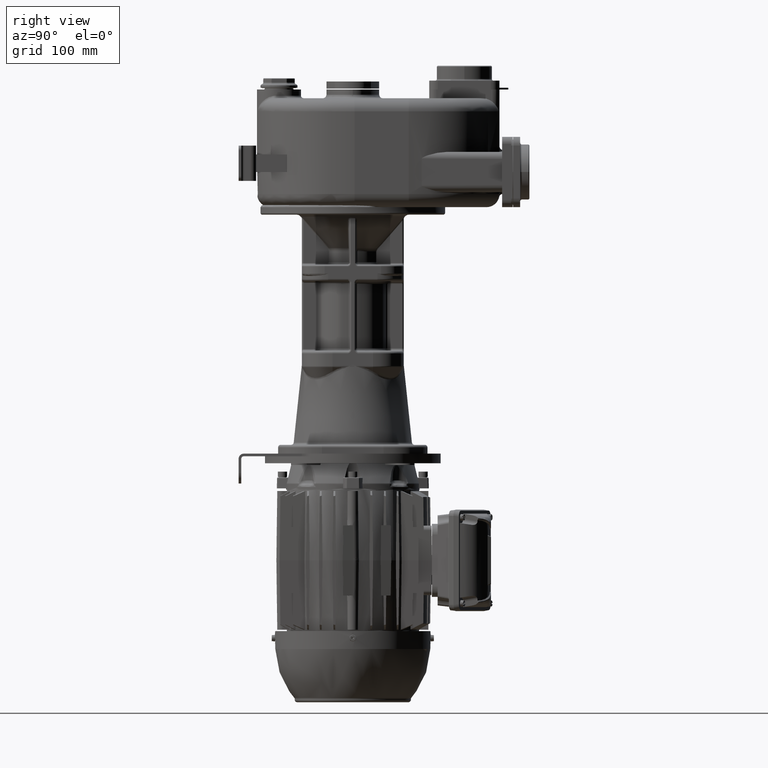
[diagram: clean part render]
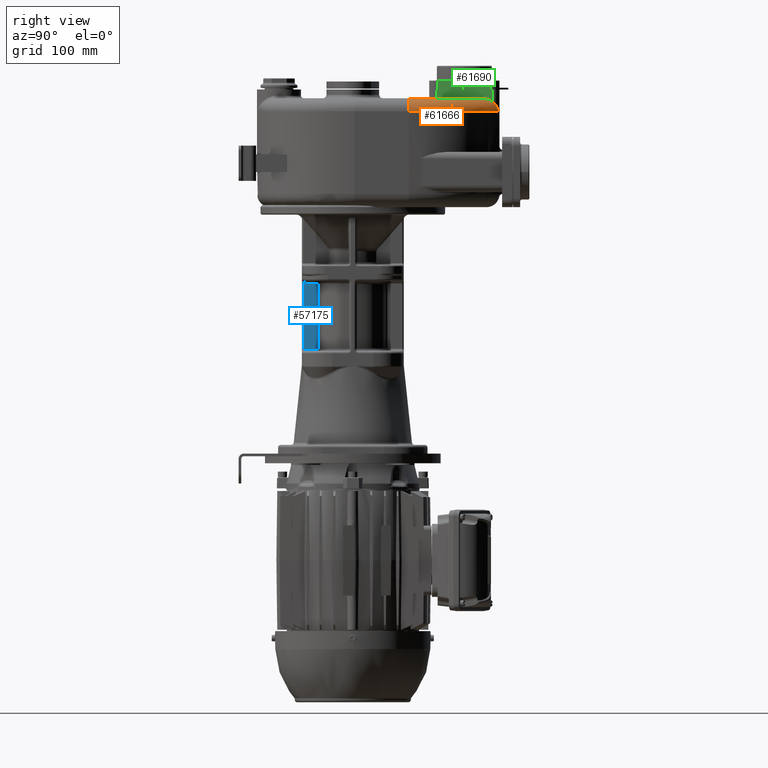
[diagram: same view with three faces highlighted in distinct colors, each labeled with its STEP entity id]
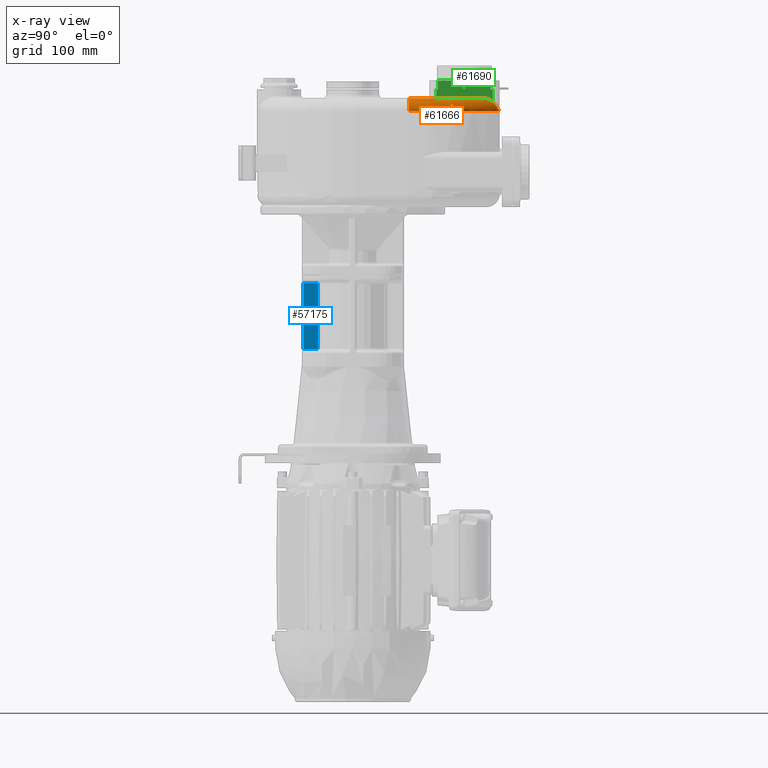
[diagram: x-ray of the same camera — body ghosted, the three highlighted faces saturated]
A machine part, right view with three faces highlighted in distinct colors.
The next image is the same camera in x-ray (body ghosted, the three faces saturated) — at least one of them is partly hidden behind the body in this view.
Their STEP definitions:

[orange] entity #61666 — the highlighted toroidal blend (fillet) surface has major radius 96 mm and minor (blend) radius 15 mm.
#12663=CARTESIAN_POINT('',(0.E0,1.736689976975E2,7.4E1));
#12664=DIRECTION('',(0.E0,0.E0,1.E0));
#12665=DIRECTION('',(1.E0,0.E0,0.E0));
#12666=AXIS2_PLACEMENT_3D('',#12663,#12664,#12665);
#13341=CARTESIAN_POINT('',(0.E0,1.736689976975E2,5.9E1));
#13342=DIRECTION('',(0.E0,0.E0,1.E0));
#13343=DIRECTION('',(1.E0,0.E0,0.E0));
#13344=AXIS2_PLACEMENT_3D('',#13341,#13342,#13343);
#13381=CARTESIAN_POINT('',(9.6E1,1.736689976975E2,5.9E1));
#13382=DIRECTION('',(0.E0,1.E0,0.E0));
#13383=DIRECTION('',(0.E0,0.E0,1.E0));
#13384=AXIS2_PLACEMENT_3D('',#13381,#13382,#13383);
#13386=CARTESIAN_POINT('',(4.7E1,2.573768228992E2,7.4E1));
#13387=CARTESIAN_POINT('',(4.7E1,2.576020841172E2,7.4E1));
#13388=CARTESIAN_POINT('',(4.7E1,2.580511507349E2,7.399229348160E1));
#13389=CARTESIAN_POINT('',(4.7E1,2.587211423584E2,7.395779192768E1));
#13390=CARTESIAN_POINT('',(4.7E1,2.593852482694E2,7.390066815002E1));
#13391=CARTESIAN_POINT('',(4.7E1,2.600433627516E2,7.382117493754E1));
#13392=CARTESIAN_POINT('',(4.7E1,2.606940159417E2,7.371969160582E1));
#13393=CARTESIAN_POINT('',(4.7E1,2.613358163383E2,7.359673452289E1));
#13394=CARTESIAN_POINT('',(4.7E1,2.619686264832E2,7.345259981904E1));
#13395=CARTESIAN_POINT('',(4.7E1,2.625907623841E2,7.328795824950E1));
#13396=CARTESIAN_POINT('',(4.7E1,2.632018763834E2,7.310323769657E1));
#13397=CARTESIAN_POINT('',(4.7E1,2.638012376095E2,7.289894857617E1));
#13398=CARTESIAN_POINT('',(4.7E1,2.643875618754E2,7.267588768255E1));
#13399=CARTESIAN_POINT('',(4.7E1,2.649609632373E2,7.243435346503E1));
#13400=CARTESIAN_POINT('',(4.7E1,2.655201532063E2,7.217522917677E1));
#13401=CARTESIAN_POINT('',(4.7E1,2.660649519596E2,7.189898353999E1));
#13402=CARTESIAN_POINT('',(4.7E1,2.665948407258E2,7.160621854533E1));
#13403=CARTESIAN_POINT('',(4.7E1,2.671089253753E2,7.129783018173E1));
#13404=CARTESIAN_POINT('',(4.7E1,2.676074032988E2,7.097407269753E1));
#13405=CARTESIAN_POINT('',(4.7E1,2.680892357156E2,7.063600853973E1));
#13406=CARTESIAN_POINT('',(4.7E1,2.685546866574E2,7.028384310627E1));
#13407=CARTESIAN_POINT('',(4.7E1,2.688534246486E2,7.004041331155E1));
#13408=CARTESIAN_POINT('',(4.7E1,2.69E2,6.991652437851E1));
#13410=CARTESIAN_POINT('',(4.7E1,2.69E2,6.991652437851E1));
#13411=CARTESIAN_POINT('',(4.7E1,2.691195070842E2,6.981551418132E1));
#13412=CARTESIAN_POINT('',(4.699464446571E1,2.693602820859E2,6.960820275807E1));
#13413=CARTESIAN_POINT('',(4.696984056815E1,2.697259407527E2,6.928110850992E1));
#13414=CARTESIAN_POINT('',(4.692766502414E1,2.700948741172E2,6.893804466269E1));
#13415=CARTESIAN_POINT('',(4.686743596046E1,2.704667559199E2,6.857831903417E1));
#13416=CARTESIAN_POINT('',(4.678863864729E1,2.708401996847E2,6.820222725714E1));
#13417=CARTESIAN_POINT('',(4.669063577583E1,2.712146616847E2,6.780922380953E1));
#13418=CARTESIAN_POINT('',(4.657298624856E1,2.715887841547E2,6.739956558133E1));
#13419=CARTESIAN_POINT('',(4.643525122413E1,2.719614777855E2,6.697325013761E1));
#13420=CARTESIAN_POINT('',(4.627704524287E1,2.723315500538E2,6.653036567936E1));
#13421=CARTESIAN_POINT('',(4.609826498293E1,2.726973730970E2,6.607156774836E1));
#13422=CARTESIAN_POINT('',(4.589860561350E1,2.730578858875E2,6.559682931060E1));
#13423=CARTESIAN_POINT('',(4.567827729936E1,2.734112410515E2,6.510719426335E1));
#13424=CARTESIAN_POINT('',(4.543715121870E1,2.737563322395E2,6.460275824237E1));
#13425=CARTESIAN_POINT('',(4.517580739174E1,2.740911771549E2,6.408495520394E1));
#13426=CARTESIAN_POINT('',(4.489444608728E1,2.744145383640E2,6.355423564050E1));
#13427=CARTESIAN_POINT('',(4.459383101101E1,2.747246544355E2,6.301198719019E1));
#13428=CARTESIAN_POINT('',(4.427460867894E1,2.750201316807E2,6.245917754969E1));
#13429=CARTESIAN_POINT('',(4.393765704004E1,2.752994997816E2,6.189704925977E1));
#13430=CARTESIAN_POINT('',(4.358425123373E1,2.755612050271E2,6.132731737671E1));
#13431=CARTESIAN_POINT('',(4.321528910514E1,2.758041564417E2,6.075094711705E1));
#13432=CARTESIAN_POINT('',(4.283257270117E1,2.760268712530E2,6.017017331297E1));
#13433=CARTESIAN_POINT('',(4.243709117565E1,2.762285629806E2,5.958585060662E1));
#13434=CARTESIAN_POINT('',(4.216627222510E1,2.763482431350E2,5.919545374962E1));
#13435=CARTESIAN_POINT('',(4.202912621359E1,2.764043496934E2,5.9E1));
#38337=CARTESIAN_POINT('',(1.11E2,1.736689976975E2,5.9E1));
#38338=CARTESIAN_POINT('',(4.202912621359E1,2.764043496934E2,5.9E1));
#38339=VERTEX_POINT('',#38337);
#38340=VERTEX_POINT('',#38338);
#38341=CARTESIAN_POINT('',(9.6E1,1.736689976975E2,7.4E1));
#38342=CARTESIAN_POINT('',(4.7E1,2.573768228992E2,7.4E1));
#38343=VERTEX_POINT('',#38341);
#38344=VERTEX_POINT('',#38342);
#38362=VERTEX_POINT('',#13408);
#61652=CARTESIAN_POINT('',(0.E0,1.736689976975E2,5.9E1));
#61653=DIRECTION('',(0.E0,0.E0,-1.E0));
#61654=DIRECTION('',(9.999722327207E-1,-7.452099538963E-3,0.E0));
#61655=AXIS2_PLACEMENT_3D('',#61652,#61653,#61654);
#61656=TOROIDAL_SURFACE('',#61655,9.6E1,1.5E1);
#61657=ORIENTED_EDGE('',*,*,#61600,.F.);
#61658=ORIENTED_EDGE('',*,*,#61644,.F.);
#61659=ORIENTED_EDGE('',*,*,#61109,.T.);
#61661=ORIENTED_EDGE('',*,*,#61660,.T.);
#61663=ORIENTED_EDGE('',*,*,#61662,.T.);
#61664=EDGE_LOOP('',(#61657,#61658,#61659,#61661,#61663));
#61665=FACE_OUTER_BOUND('',#61664,.F.);
#61666=ADVANCED_FACE('',(#61665),#61656,.T.);
#12667=CIRCLE('',#12666,9.6E1);
#13345=CIRCLE('',#13344,1.11E2);
#13385=CIRCLE('',#13384,1.5E1);
#13409=B_SPLINE_CURVE_WITH_KNOTS('',3,(#13386,#13387,#13388,#13389,#13390,
#13391,#13392,#13393,#13394,#13395,#13396,#13397,#13398,#13399,#13400,#13401,
#13402,#13403,#13404,#13405,#13406,#13407,#13408),.UNSPECIFIED.,.F.,.F.,(4,1,1,
1,1,1,1,1,1,1,1,1,1,1,1,1,1,1,1,1,4),(0.E0,5.E-2,1.E-1,1.5E-1,2.E-1,2.5E-1,
3.E-1,3.5E-1,4.E-1,4.5E-1,5.E-1,5.5E-1,6.E-1,6.5E-1,7.E-1,7.5E-1,8.E-1,8.5E-1,
9.E-1,9.5E-1,1.E0),.UNSPECIFIED.);
#13436=B_SPLINE_CURVE_WITH_KNOTS('',3,(#13410,#13411,#13412,#13413,#13414,
#13415,#13416,#13417,#13418,#13419,#13420,#13421,#13422,#13423,#13424,#13425,
#13426,#13427,#13428,#13429,#13430,#13431,#13432,#13433,#13434,#13435),
.UNSPECIFIED.,.F.,.F.,(4,1,1,1,1,1,1,1,1,1,1,1,1,1,1,1,1,1,1,1,1,1,1,4),(0.E0,
4.347826086957E-2,8.695652173913E-2,1.304347826087E-1,1.739130434783E-1,
2.173913043478E-1,2.608695652174E-1,3.043478260870E-1,3.478260869565E-1,
3.913043478261E-1,4.347826086957E-1,4.782608695652E-1,5.217391304348E-1,
5.652173913043E-1,6.086956521739E-1,6.521739130435E-1,6.956521739130E-1,
7.391304347826E-1,7.826086956522E-1,8.260869565217E-1,8.695652173913E-1,
9.130434782609E-1,9.565217391304E-1,1.E0),.UNSPECIFIED.);
#61109=EDGE_CURVE('',#38343,#38344,#12667,.T.);
#61600=EDGE_CURVE('',#38339,#38340,#13345,.T.);
#61644=EDGE_CURVE('',#38343,#38339,#13385,.T.);
#61660=EDGE_CURVE('',#38344,#38362,#13409,.T.);
#61662=EDGE_CURVE('',#38362,#38340,#13436,.T.);

[blue] entity #57175 — the highlighted planar face has unit normal (-1, 0, 0).
#10367=CARTESIAN_POINT('',(3.5E0,5.5E1,-1.315E2));
#10368=DIRECTION('',(-1.E0,0.E0,0.E0));
#10369=DIRECTION('',(0.E0,0.E0,-1.E0));
#10370=AXIS2_PLACEMENT_3D('',#10367,#10368,#10369);
#10372=DIRECTION('',(0.E0,-1.E0,0.E0));
#10373=VECTOR('',#10372,1.437057716383E1);
#10374=CARTESIAN_POINT('',(3.5E0,6.937057716383E1,-1.365E2));
#10375=LINE('',#10374,#10373);
#10376=CARTESIAN_POINT('',(3.5E0,7.037992932868E1,-1.375E2));
#10377=CARTESIAN_POINT('',(3.5E0,7.037992923916E1,-1.374773699774E2));
#10378=CARTESIAN_POINT('',(3.5E0,7.037838316905E1,-1.374322092444E2));
#10379=CARTESIAN_POINT('',(3.5E0,7.037141402641E1,-1.373645837076E2));
#10380=CARTESIAN_POINT('',(3.5E0,7.035983086058E1,-1.372976208540E2));
#10381=CARTESIAN_POINT('',(3.5E0,7.034367710807E1,-1.372315457832E2));
#10382=CARTESIAN_POINT('',(3.5E0,7.032302406514E1,-1.371666899610E2));
#10383=CARTESIAN_POINT('',(3.5E0,7.029795682384E1,-1.371033366044E2));
#10384=CARTESIAN_POINT('',(3.5E0,7.026858279292E1,-1.370417807491E2));
#10385=CARTESIAN_POINT('',(3.5E0,7.023502737557E1,-1.369823052994E2));
#10386=CARTESIAN_POINT('',(3.5E0,7.019743581119E1,-1.369251879528E2));
#10387=CARTESIAN_POINT('',(3.5E0,7.015597216226E1,-1.368706970688E2));
#10388=CARTESIAN_POINT('',(3.5E0,7.011081942369E1,-1.368190913454E2));
#10389=CARTESIAN_POINT('',(3.5E0,7.006217900095E1,-1.367706180506E2));
#10390=CARTESIAN_POINT('',(3.5E0,7.001026993801E1,-1.367255114470E2));
#10391=CARTESIAN_POINT('',(3.5E0,6.995532861523E1,-1.366839917281E2));
#10392=CARTESIAN_POINT('',(3.5E0,6.989760781639E1,-1.366462633752E2));
#10393=CARTESIAN_POINT('',(3.5E0,6.983737530666E1,-1.366125135720E2));
#10394=CARTESIAN_POINT('',(3.5E0,6.977491358163E1,-1.365829112119E2));
#10395=CARTESIAN_POINT('',(3.5E0,6.971051594695E1,-1.365576048858E2));
#10396=CARTESIAN_POINT('',(3.5E0,6.964449230972E1,-1.365367234217E2));
#10397=CARTESIAN_POINT('',(3.5E0,6.957714683371E1,-1.365203711209E2));
#10398=CARTESIAN_POINT('',(3.5E0,6.950883212143E1,-1.365086343248E2));
#10399=CARTESIAN_POINT('',(3.5E0,6.943980372305E1,-1.365015686296E2));
#10400=CARTESIAN_POINT('',(3.5E0,6.939368968384E1,-1.365000000893E2));
#10401=CARTESIAN_POINT('',(3.5E0,6.937057716383E1,-1.365E2));
#10403=DIRECTION('',(0.E0,0.E0,1.E0));
#10404=VECTOR('',#10403,7.3E1);
#10405=CARTESIAN_POINT('',(3.5E0,7.037992932868E1,-2.105E2));
#10406=LINE('',#10405,#10404);
#10407=CARTESIAN_POINT('',(3.5E0,6.937057716383E1,-2.115E2));
#10408=CARTESIAN_POINT('',(3.5E0,6.939368964652E1,-2.114999999119E2));
#10409=CARTESIAN_POINT('',(3.5E0,6.943980361795E1,-2.114984313721E2));
#10410=CARTESIAN_POINT('',(3.5E0,6.950883180983E1,-2.114913657172E2));
#10411=CARTESIAN_POINT('',(3.5E0,6.957714658714E1,-2.114796289318E2));
#10412=CARTESIAN_POINT('',(3.5E0,6.964449205123E1,-2.114632766503E2));
#10413=CARTESIAN_POINT('',(3.5E0,6.971051569505E1,-2.114423952040E2));
#10414=CARTESIAN_POINT('',(3.5E0,6.977491333651E1,-2.114170888945E2));
#10415=CARTESIAN_POINT('',(3.5E0,6.983737506784E1,-2.113874865516E2));
#10416=CARTESIAN_POINT('',(3.5E0,6.989760758625E1,-2.113537367645E2));
#10417=CARTESIAN_POINT('',(3.5E0,6.995532839471E1,-2.113160084271E2));
#10418=CARTESIAN_POINT('',(3.5E0,7.001026972716E1,-2.112744887239E2));
#10419=CARTESIAN_POINT('',(3.5E0,7.006217880310E1,-2.112293821337E2));
#10420=CARTESIAN_POINT('',(3.5E0,7.011081924404E1,-2.111809088462E2));
#10421=CARTESIAN_POINT('',(3.5E0,7.015597199621E1,-2.111293031341E2));
#10422=CARTESIAN_POINT('',(3.5E0,7.019743565841E1,-2.110748122624E2));
#10423=CARTESIAN_POINT('',(3.5E0,7.023502723783E1,-2.110176949256E2));
#10424=CARTESIAN_POINT('',(3.5E0,7.026858267018E1,-2.109582194861E2));
#10425=CARTESIAN_POINT('',(3.5E0,7.029795671768E1,-2.108966636382E2));
#10426=CARTESIAN_POINT('',(3.5E0,7.032302397492E1,-2.108333102901E2));
#10427=CARTESIAN_POINT('',(3.5E0,7.034367703543E1,-2.107684544755E2));
#10428=CARTESIAN_POINT('',(3.5E0,7.035983080687E1,-2.107023793957E2));
#10429=CARTESIAN_POINT('',(3.5E0,7.037141398366E1,-2.106354166078E2));
#10430=CARTESIAN_POINT('',(3.5E0,7.037838316745E1,-2.105677908606E2));
#10431=CARTESIAN_POINT('',(3.5E0,7.037992923792E1,-2.105226300597E2));
#10432=CARTESIAN_POINT('',(3.5E0,7.037992932868E1,-2.105E2));
#10434=DIRECTION('',(0.E0,1.E0,0.E0));
#10435=VECTOR('',#10434,1.437057716383E1);
#10436=CARTESIAN_POINT('',(3.5E0,5.5E1,-2.115E2));
#10437=LINE('',#10436,#10435);
#10438=CARTESIAN_POINT('',(3.5E0,5.5E1,-2.165E2));
#10439=DIRECTION('',(-1.E0,0.E0,0.E0));
#10440=DIRECTION('',(0.E0,-1.999999992325E-1,9.797958972699E-1));
#10441=AXIS2_PLACEMENT_3D('',#10438,#10439,#10440);
#10443=DIRECTION('',(7.789562136180E-12,0.E0,-1.E0));
#10444=VECTOR('',#10443,7.520204101910E1);
#10445=CARTESIAN_POINT('',(3.500000012017E0,5.4E1,-1.363989794904E2));
#10446=LINE('',#10445,#10444);
#39496=CARTESIAN_POINT('',(3.5E0,6.937057716383E1,-1.365E2));
#39497=CARTESIAN_POINT('',(3.5E0,5.5E1,-1.365E2));
#39498=VERTEX_POINT('',#39496);
#39499=VERTEX_POINT('',#39497);
#39503=CARTESIAN_POINT('',(3.5E0,7.037992932868E1,-2.105E2));
#39504=CARTESIAN_POINT('',(3.5E0,7.037992932868E1,-1.375E2));
#39505=VERTEX_POINT('',#39503);
#39506=VERTEX_POINT('',#39504);
#39510=CARTESIAN_POINT('',(3.5E0,5.5E1,-2.115E2));
#39511=CARTESIAN_POINT('',(3.5E0,6.937057716383E1,-2.115E2));
#39512=VERTEX_POINT('',#39510);
#39513=VERTEX_POINT('',#39511);
#39604=CARTESIAN_POINT('',(3.5E0,5.400000000381E1,-1.363989794863E2));
#39605=VERTEX_POINT('',#39604);
#39624=CARTESIAN_POINT('',(3.5E0,5.400000000384E1,-2.116010205137E2));
#39625=VERTEX_POINT('',#39624);
#57153=CARTESIAN_POINT('',(3.5E0,1.1E2,-1.775E2));
#57154=DIRECTION('',(-1.E0,0.E0,0.E0));
#57155=DIRECTION('',(0.E0,0.E0,1.E0));
#57156=AXIS2_PLACEMENT_3D('',#57153,#57154,#57155);
#57157=PLANE('',#57156);
#57158=ORIENTED_EDGE('',*,*,#57143,.F.);
#57160=ORIENTED_EDGE('',*,*,#57159,.F.);
#57162=ORIENTED_EDGE('',*,*,#57161,.F.);
#57164=ORIENTED_EDGE('',*,*,#57163,.F.);
#57166=ORIENTED_EDGE('',*,*,#57165,.F.);
#57168=ORIENTED_EDGE('',*,*,#57167,.F.);
#57170=ORIENTED_EDGE('',*,*,#57169,.F.);
#57172=ORIENTED_EDGE('',*,*,#57171,.F.);
#57173=EDGE_LOOP('',(#57158,#57160,#57162,#57164,#57166,#57168,#57170,#57172));
#57174=FACE_OUTER_BOUND('',#57173,.F.);
#57175=ADVANCED_FACE('',(#57174),#57157,.F.);
#10371=CIRCLE('',#10370,5.E0);
#10402=B_SPLINE_CURVE_WITH_KNOTS('',3,(#10376,#10377,#10378,#10379,#10380,
#10381,#10382,#10383,#10384,#10385,#10386,#10387,#10388,#10389,#10390,#10391,
#10392,#10393,#10394,#10395,#10396,#10397,#10398,#10399,#10400,#10401),
.UNSPECIFIED.,.F.,.F.,(4,1,1,1,1,1,1,1,1,1,1,1,1,1,1,1,1,1,1,1,1,1,1,4),(0.E0,
4.347826086957E-2,8.695652173913E-2,1.304347826087E-1,1.739130434783E-1,
2.173913043478E-1,2.608695652174E-1,3.043478260870E-1,3.478260869565E-1,
3.913043478261E-1,4.347826086957E-1,4.782608695652E-1,5.217391304348E-1,
5.652173913043E-1,6.086956521739E-1,6.521739130435E-1,6.956521739130E-1,
7.391304347826E-1,7.826086956522E-1,8.260869565217E-1,8.695652173913E-1,
9.130434782609E-1,9.565217391304E-1,1.E0),.UNSPECIFIED.);
#10433=B_SPLINE_CURVE_WITH_KNOTS('',3,(#10407,#10408,#10409,#10410,#10411,
#10412,#10413,#10414,#10415,#10416,#10417,#10418,#10419,#10420,#10421,#10422,
#10423,#10424,#10425,#10426,#10427,#10428,#10429,#10430,#10431,#10432),
.UNSPECIFIED.,.F.,.F.,(4,1,1,1,1,1,1,1,1,1,1,1,1,1,1,1,1,1,1,1,1,1,1,4),(0.E0,
4.347826086957E-2,8.695652173913E-2,1.304347826087E-1,1.739130434783E-1,
2.173913043478E-1,2.608695652174E-1,3.043478260870E-1,3.478260869565E-1,
3.913043478261E-1,4.347826086957E-1,4.782608695652E-1,5.217391304348E-1,
5.652173913043E-1,6.086956521739E-1,6.521739130435E-1,6.956521739130E-1,
7.391304347826E-1,7.826086956522E-1,8.260869565217E-1,8.695652173913E-1,
9.130434782609E-1,9.565217391304E-1,1.E0),.UNSPECIFIED.);
#10442=CIRCLE('',#10441,5.E0);
#57143=EDGE_CURVE('',#39499,#39605,#10371,.T.);
#57159=EDGE_CURVE('',#39498,#39499,#10375,.T.);
#57161=EDGE_CURVE('',#39506,#39498,#10402,.T.);
#57163=EDGE_CURVE('',#39505,#39506,#10406,.T.);
#57165=EDGE_CURVE('',#39513,#39505,#10433,.T.);
#57167=EDGE_CURVE('',#39512,#39513,#10437,.T.);
#57169=EDGE_CURVE('',#39625,#39512,#10442,.T.);
#57171=EDGE_CURVE('',#39605,#39625,#10446,.T.);

[green] entity #61690 — the highlighted planar face has unit normal (1, 0, 0).
#13386=CARTESIAN_POINT('',(4.7E1,2.573768228992E2,7.4E1));
#13387=CARTESIAN_POINT('',(4.7E1,2.576020841172E2,7.4E1));
#13388=CARTESIAN_POINT('',(4.7E1,2.580511507349E2,7.399229348160E1));
#13389=CARTESIAN_POINT('',(4.7E1,2.587211423584E2,7.395779192768E1));
#13390=CARTESIAN_POINT('',(4.7E1,2.593852482694E2,7.390066815002E1));
#13391=CARTESIAN_POINT('',(4.7E1,2.600433627516E2,7.382117493754E1));
#13392=CARTESIAN_POINT('',(4.7E1,2.606940159417E2,7.371969160582E1));
#13393=CARTESIAN_POINT('',(4.7E1,2.613358163383E2,7.359673452289E1));
#13394=CARTESIAN_POINT('',(4.7E1,2.619686264832E2,7.345259981904E1));
#13395=CARTESIAN_POINT('',(4.7E1,2.625907623841E2,7.328795824950E1));
#13396=CARTESIAN_POINT('',(4.7E1,2.632018763834E2,7.310323769657E1));
#13397=CARTESIAN_POINT('',(4.7E1,2.638012376095E2,7.289894857617E1));
#13398=CARTESIAN_POINT('',(4.7E1,2.643875618754E2,7.267588768255E1));
#13399=CARTESIAN_POINT('',(4.7E1,2.649609632373E2,7.243435346503E1));
#13400=CARTESIAN_POINT('',(4.7E1,2.655201532063E2,7.217522917677E1));
#13401=CARTESIAN_POINT('',(4.7E1,2.660649519596E2,7.189898353999E1));
#13402=CARTESIAN_POINT('',(4.7E1,2.665948407258E2,7.160621854533E1));
#13403=CARTESIAN_POINT('',(4.7E1,2.671089253753E2,7.129783018173E1));
#13404=CARTESIAN_POINT('',(4.7E1,2.676074032988E2,7.097407269753E1));
#13405=CARTESIAN_POINT('',(4.7E1,2.680892357156E2,7.063600853973E1));
#13406=CARTESIAN_POINT('',(4.7E1,2.685546866574E2,7.028384310627E1));
#13407=CARTESIAN_POINT('',(4.7E1,2.688534246486E2,7.004041331155E1));
#13408=CARTESIAN_POINT('',(4.7E1,2.69E2,6.991652437851E1));
#13437=DIRECTION('',(0.E0,1.E0,0.E0));
#13438=VECTOR('',#13437,6.E1);
#13439=CARTESIAN_POINT('',(4.7E1,2.07E2,9.4E1));
#13440=LINE('',#13439,#13438);
#13441=DIRECTION('',(0.E0,1.E0,0.E0));
#13442=VECTOR('',#13441,5.237682289921E1);
#13443=CARTESIAN_POINT('',(4.7E1,2.05E2,7.4E1));
#13444=LINE('',#13443,#13442);
#13445=DIRECTION('',(0.E0,0.E0,-1.E0));
#13446=VECTOR('',#13445,1.E1);
#13447=CARTESIAN_POINT('',(4.7E1,2.05E2,8.4E1));
#13448=LINE('',#13447,#13446);
#13458=DIRECTION('',(0.E0,0.E0,-1.E0));
#13459=VECTOR('',#13458,1.E1);
#13460=CARTESIAN_POINT('',(4.7E1,2.07E2,9.4E1));
#13461=LINE('',#13460,#13459);
#13568=DIRECTION('',(0.E0,0.E0,1.E0));
#13569=VECTOR('',#13568,1.E1);
#13570=CARTESIAN_POINT('',(4.7E1,2.67E2,8.4E1));
#13571=LINE('',#13570,#13569);
#15313=DIRECTION('',(0.E0,0.E0,1.E0));
#15314=VECTOR('',#15313,1.408347562149E1);
#15315=CARTESIAN_POINT('',(4.7E1,2.69E2,6.991652437851E1));
#15316=LINE('',#15315,#15314);
#15326=DIRECTION('',(0.E0,1.E0,0.E0));
#15327=VECTOR('',#15326,2.E0);
#15328=CARTESIAN_POINT('',(4.7E1,2.67E2,8.4E1));
#15329=LINE('',#15328,#15327);
#15363=DIRECTION('',(0.E0,1.E0,0.E0));
#15364=VECTOR('',#15363,2.E0);
#15365=CARTESIAN_POINT('',(4.7E1,2.05E2,8.4E1));
#15366=LINE('',#15365,#15364);
#38318=CARTESIAN_POINT('',(4.7E1,2.05E2,8.4E1));
#38320=VERTEX_POINT('',#38318);
#38329=CARTESIAN_POINT('',(4.7E1,2.05E2,7.4E1));
#38330=VERTEX_POINT('',#38329);
#38342=CARTESIAN_POINT('',(4.7E1,2.573768228992E2,7.4E1));
#38344=VERTEX_POINT('',#38342);
#38362=VERTEX_POINT('',#13408);
#38365=CARTESIAN_POINT('',(4.7E1,2.69E2,8.4E1));
#38366=VERTEX_POINT('',#38365);
#38913=CARTESIAN_POINT('',(4.7E1,2.07E2,8.4E1));
#38915=VERTEX_POINT('',#38913);
#38930=CARTESIAN_POINT('',(4.7E1,2.67E2,8.4E1));
#38931=VERTEX_POINT('',#38930);
#38982=CARTESIAN_POINT('',(4.7E1,2.07E2,9.4E1));
#38983=CARTESIAN_POINT('',(4.7E1,2.67E2,9.4E1));
#38984=VERTEX_POINT('',#38982);
#38985=VERTEX_POINT('',#38983);
#61667=CARTESIAN_POINT('',(4.7E1,1.97E2,8.4E1));
#61668=DIRECTION('',(1.E0,0.E0,0.E0));
#61669=DIRECTION('',(0.E0,1.E0,0.E0));
#61670=AXIS2_PLACEMENT_3D('',#61667,#61668,#61669);
#61671=PLANE('',#61670);
#61673=ORIENTED_EDGE('',*,*,#61672,.F.);
#61675=ORIENTED_EDGE('',*,*,#61674,.T.);
#61677=ORIENTED_EDGE('',*,*,#61676,.F.);
#61679=ORIENTED_EDGE('',*,*,#61678,.T.);
#61681=ORIENTED_EDGE('',*,*,#61680,.F.);
#61682=ORIENTED_EDGE('',*,*,#61660,.F.);
#61683=ORIENTED_EDGE('',*,*,#61107,.F.);
#61685=ORIENTED_EDGE('',*,*,#61684,.F.);
#61687=ORIENTED_EDGE('',*,*,#61686,.T.);
#61688=EDGE_LOOP('',(#61673,#61675,#61677,#61679,#61681,#61682,#61683,#61685,
#61687));
#61689=FACE_OUTER_BOUND('',#61688,.F.);
#61690=ADVANCED_FACE('',(#61689),#61671,.T.);
#13409=B_SPLINE_CURVE_WITH_KNOTS('',3,(#13386,#13387,#13388,#13389,#13390,
#13391,#13392,#13393,#13394,#13395,#13396,#13397,#13398,#13399,#13400,#13401,
#13402,#13403,#13404,#13405,#13406,#13407,#13408),.UNSPECIFIED.,.F.,.F.,(4,1,1,
1,1,1,1,1,1,1,1,1,1,1,1,1,1,1,1,1,4),(0.E0,5.E-2,1.E-1,1.5E-1,2.E-1,2.5E-1,
3.E-1,3.5E-1,4.E-1,4.5E-1,5.E-1,5.5E-1,6.E-1,6.5E-1,7.E-1,7.5E-1,8.E-1,8.5E-1,
9.E-1,9.5E-1,1.E0),.UNSPECIFIED.);
#61107=EDGE_CURVE('',#38330,#38344,#13444,.T.);
#61660=EDGE_CURVE('',#38344,#38362,#13409,.T.);
#61672=EDGE_CURVE('',#38984,#38915,#13461,.T.);
#61674=EDGE_CURVE('',#38984,#38985,#13440,.T.);
#61676=EDGE_CURVE('',#38931,#38985,#13571,.T.);
#61678=EDGE_CURVE('',#38931,#38366,#15329,.T.);
#61680=EDGE_CURVE('',#38362,#38366,#15316,.T.);
#61684=EDGE_CURVE('',#38320,#38330,#13448,.T.);
#61686=EDGE_CURVE('',#38320,#38915,#15366,.T.);